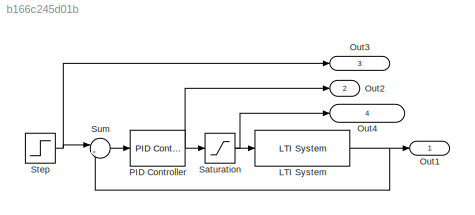
MODEL slx_b166c245d01b
KIND model
CONFIG AbsTol = auto
CONFIG EnableMultiTasking = off
CONFIG FixedStep = auto
CONFIG MaxStep = auto
CONFIG MinStep = auto
CONFIG RelTol = 1e-3
CONFIG SampleTimeConstraint = Unconstrained
CONFIG SolverName = VariableStepAuto
CONFIG StartTime = 0.0
CONFIG StopTime = sim_time
BLOCK [Reference] LTI System  REF=cstblocks/LTI System
  SourceBlock = cstblocks/LTI System
  SourceType = LTI Block
BLOCK [Outport] Out1
  IconDisplay = Signal name
  SignalName = Output
BLOCK [Outport] Out2
  IconDisplay = Signal name
  Port = 2
  SignalName = U
BLOCK [Outport] Out3
  IconDisplay = Signal name
  Port = 3
  SignalName = Reference
BLOCK [Outport] Out4
  IconDisplay = Signal name
  Port = 4
  SignalName = U_Saturated
BLOCK [Reference] PID Controller  REF=slpidlib/PID Controller
  LibrarySourceBlock = simulink/Continuous/PID Controller
  SourceBlock = slpidlib/PID Controller
  SourceType = PID 1dof
BLOCK [Saturate] Saturation
  LowerLimit = -Saturation
  UpperLimit = Saturation
BLOCK [Step] Step
  After = stepRef
  SampleTime = 0
  Time = 0
BLOCK [Sum] Sum
  Inputs = |+-
NET LTI System:1 -> Out1:1, Sum:2
NET PID Controller:1 -> Out2:1, Saturation:1
NET Saturation:1 -> LTI System:1, Out4:1
NET Step:1 -> Out3:1, Sum:1
LINE Sum:1 -> PID Controller:1
note: NET lines group one-source signal fan-out (src -> all destinations, sorted); 1:1 wires keep LINE
